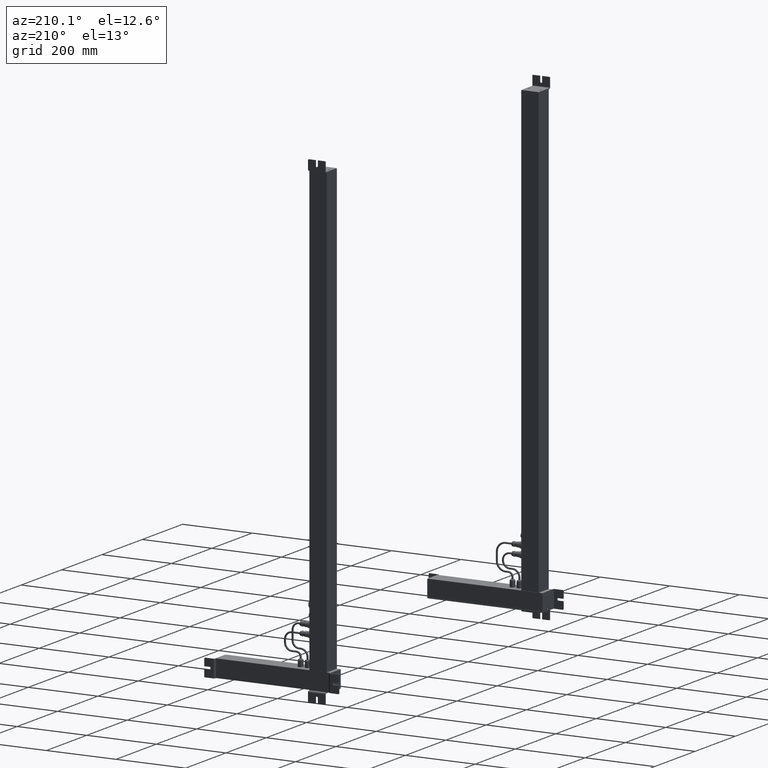
[diagram: clean part render]
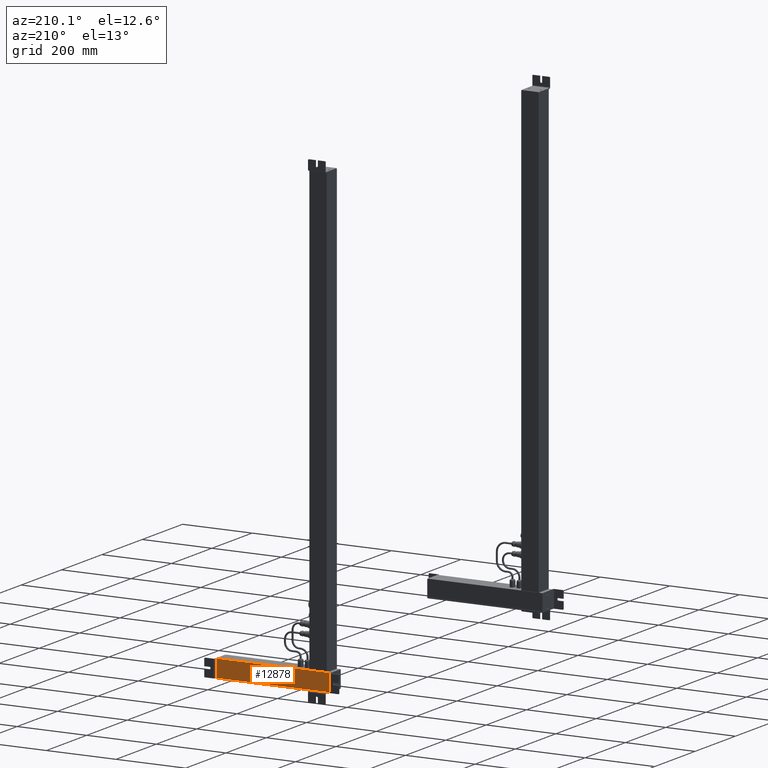
[diagram: same view with one face highlighted and labeled with its STEP entity id]
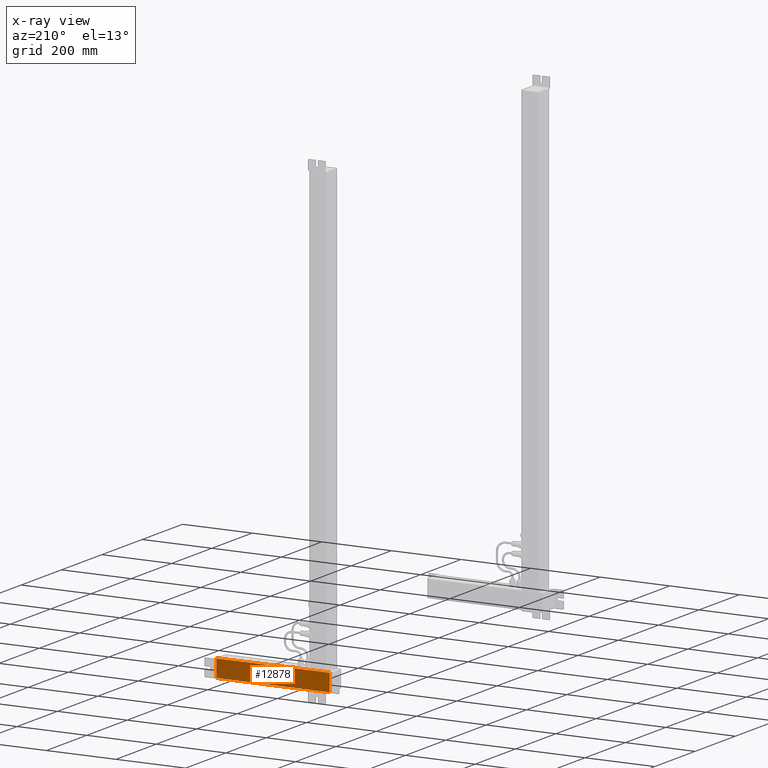
[diagram: x-ray of the same camera — body ghosted, the highlighted face saturated]
A machine part, auxiliary view. The second image highlights one B-rep face of the part: STEP entity #12878.
The next image is the same camera in x-ray: the body ghosted, the highlighted face saturated — about 0% of this face is hidden behind the body in this view.
In plain terms, the highlighted planar face has unit normal (-0, 1, 0).
Its self-contained STEP definition (entity closure, byte-faithful):
#12416=CARTESIAN_POINT('Line Origine',(50.,2.90282621546E-015,162.5)) ;
#12420=CARTESIAN_POINT('Vertex',(50.,0.,0.)) ;
#12422=CARTESIAN_POINT('Vertex',(50.,0.,325.)) ;
#12546=CARTESIAN_POINT('Vertex',(0.,0.,0.)) ;
#12573=CARTESIAN_POINT('Line Origine',(25.,0.,0.)) ;
#12751=CARTESIAN_POINT('Line Origine',(0.,0.,162.5)) ;
#12755=CARTESIAN_POINT('Vertex',(0.,0.,325.)) ;
#12851=CARTESIAN_POINT('Line Origine',(25.,0.,325.)) ;
#12867=CARTESIAN_POINT('Axis2P3D Location',(0.,0.,0.)) ;
#12417=DIRECTION('Vector Direction',(0.,0.,1.)) ;
#12574=DIRECTION('Vector Direction',(1.,0.,0.)) ;
#12752=DIRECTION('Vector Direction',(0.,0.,1.)) ;
#12852=DIRECTION('Vector Direction',(1.,0.,0.)) ;
#12868=DIRECTION('Axis2P3D Direction',(0.,-1.,0.)) ;
#12869=DIRECTION('Axis2P3D XDirection',(1.,0.,0.)) ;
#12870=AXIS2_PLACEMENT_3D('Plane Axis2P3D',#12867,#12868,#12869) ;
#12873=ORIENTED_EDGE('',*,*,#12757,.F.) ;
#12874=ORIENTED_EDGE('',*,*,#12577,.T.) ;
#12875=ORIENTED_EDGE('',*,*,#12424,.T.) ;
#12876=ORIENTED_EDGE('',*,*,#12855,.F.) ;
#12418=VECTOR('Line Direction',#12417,1.) ;
#12575=VECTOR('Line Direction',#12574,1.) ;
#12753=VECTOR('Line Direction',#12752,1.) ;
#12853=VECTOR('Line Direction',#12852,1.) ;
#12878=ADVANCED_FACE('PartBody',(#12877),#12871,.T.) ;
#12424=EDGE_CURVE('',#12421,#12423,#12419,.T.) ;
#12577=EDGE_CURVE('',#12547,#12421,#12576,.T.) ;
#12757=EDGE_CURVE('',#12547,#12756,#12754,.T.) ;
#12855=EDGE_CURVE('',#12756,#12423,#12854,.T.) ;
#12872=EDGE_LOOP('',(#12873,#12874,#12875,#12876)) ;
#12877=FACE_OUTER_BOUND('',#12872,.T.) ;
#12419=LINE('Line',#12416,#12418) ;
#12576=LINE('Line',#12573,#12575) ;
#12754=LINE('Line',#12751,#12753) ;
#12854=LINE('Line',#12851,#12853) ;
#12871=PLANE('Plane',#12870) ;
#12421=VERTEX_POINT('',#12420) ;
#12423=VERTEX_POINT('',#12422) ;
#12547=VERTEX_POINT('',#12546) ;
#12756=VERTEX_POINT('',#12755) ;